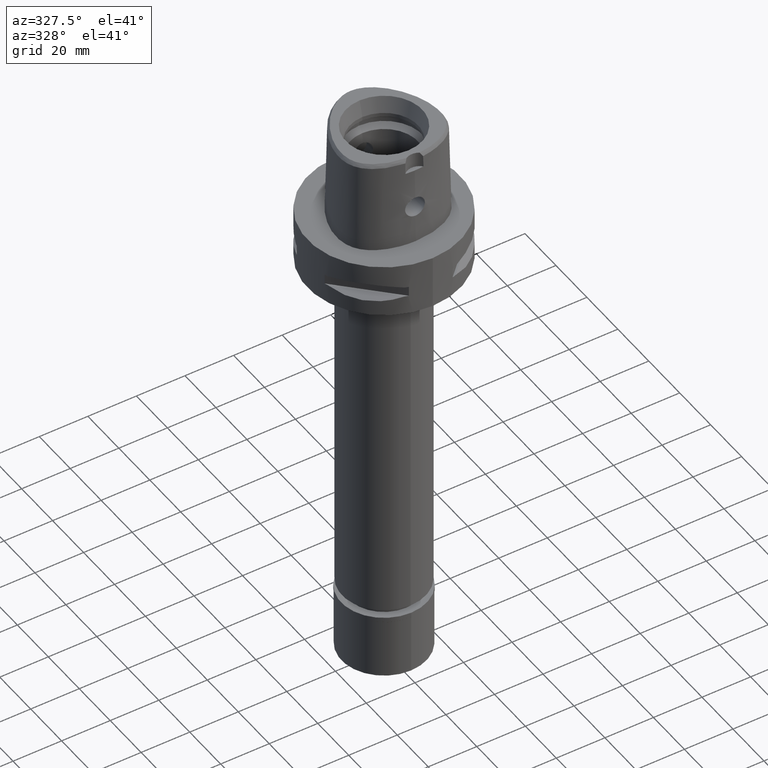
[diagram: clean part render]
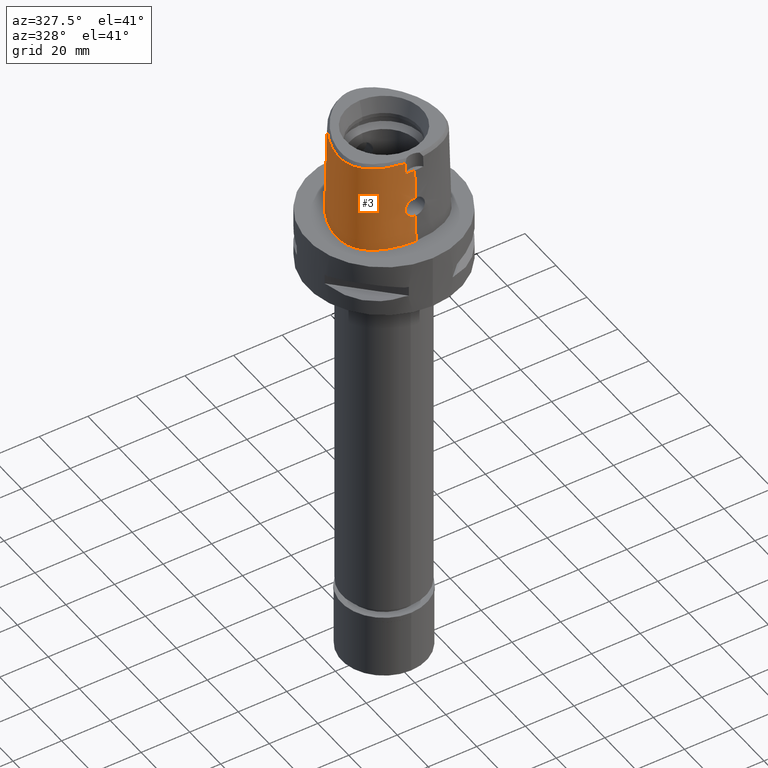
[diagram: same view with one face highlighted and labeled with its STEP entity id]
A machine part, auxiliary view. The second image highlights one B-rep face of the part: STEP entity #3.
In plain terms, the highlighted face is a freeform B-spline surface patch.
Its self-contained STEP definition (entity closure, byte-faithful):
#3 = ADVANCED_FACE ( 'NONE', ( #1398 ), #548, .T. ) ;
#8 = CARTESIAN_POINT ( 'NONE',  ( -3.623131309220052554, -20.05420346129743692, 17.31085075801793494 ) ) ;
#30 = CARTESIAN_POINT ( 'NONE',  ( -4.048201904855843303, -20.04950689277234233, 15.62483520886018340 ) ) ;
#52 = CARTESIAN_POINT ( 'NONE',  ( -1.853278680977999970, -20.08023904659999914, 24.59141015135000075 ) ) ;
#54 = CARTESIAN_POINT ( 'NONE',  ( -2.823171496021848803, -20.10104368072842718, 18.40390846381723122 ) ) ;
#58 = ORIENTED_EDGE ( 'NONE', *, *, #3249, .T. ) ;
#75 = CARTESIAN_POINT ( 'NONE',  ( -3.952973241254577275, -20.08624587561835639, 14.60894738504896928 ) ) ;
#79 = CARTESIAN_POINT ( 'NONE',  ( -21.68301092319000034, -0.3332744191908000309, 11.93048611302999973 ) ) ;
#99 = CARTESIAN_POINT ( 'NONE',  ( -3.215526995341257077, -20.20173576183446684, 13.03412874362212825 ) ) ;
#128 = CARTESIAN_POINT ( 'NONE',  ( -18.06826688526575353, 10.43171875000154714, 3.352082066782058334E-13 ) ) ;
#148 = CARTESIAN_POINT ( 'NONE',  ( -10.34823224896999960, 18.70095483757999943, 24.59141015135000075 ) ) ;
#158 = CARTESIAN_POINT ( 'NONE',  ( -4.460158730496000764E-12, -20.67499999999999716, 5.410486873340000012E-14 ) ) ;
#176 = CARTESIAN_POINT ( 'NONE',  ( -1.864355968684000519E-11, 22.56201468012000078, 36.52186680743999858 ) ) ;
#196 = CARTESIAN_POINT ( 'NONE',  ( -13.69241949641999945, 15.03666366796000098, 37.25233418967000176 ) ) ;
#222 = CARTESIAN_POINT ( 'NONE',  ( -3.671249264779256283, -19.60525188575869393, 34.94790829898666829 ) ) ;
#252 = CARTESIAN_POINT ( 'NONE',  ( -1.025656898087838442, -20.17465608164540924, 19.42036563188924347 ) ) ;
#273 = CARTESIAN_POINT ( 'NONE',  ( -18.90964971338446077, -12.28759719905109549, 36.52186244847998609 ) ) ;
#276 = CARTESIAN_POINT ( 'NONE',  ( 0.4560943670892999569, -20.69106769093999887, -0.7304379252875999873 ) ) ;
#303 = CARTESIAN_POINT ( 'NONE',  ( -1.517187227779240200, -20.16080388944384083, 19.25509261511315628 ) ) ;
#321 = CARTESIAN_POINT ( 'NONE',  ( -2.376843896514439169, 22.39422508474340745, 36.52186244847998609 ) ) ;
#338 = B_SPLINE_CURVE_WITH_KNOTS ( 'NONE', 3,
 ( #4441, #2248, #1015, #4886, #4420, #4517, #3665, #273, #3299, #1402, #2923, #1036, #2175, #3321, #4092, #4830, #685, #2606, #2200, #3714, #321, #3344, #4855 ),
 .UNSPECIFIED., .F., .F.,
 ( 4, 1, 1, 1, 1, 1, 1, 1, 1, 1, 1, 1, 1, 1, 1, 1, 1, 1, 1, 1, 4 ),
 ( 0.0000000000000000000, 0.03580973941722532389, 0.1234633994701856696, 0.1672902294966132908, 0.2111170595230409119, 0.2549438895495736435, 0.2768573045627875095, 0.2987707195760012646, 0.3206841345893202133, 0.3425975496024288858, 0.3864243796289617006, 0.4302512096553893217, 0.4740780396818169429, 0.5617316997347773233, 0.6493853597877378148, 0.7370390198406980842, 0.8246926798935533265, 0.8685195099200860858, 0.9123463399465031598, 0.9561731699729623113, 1.000000000000000000 ),
 .UNSPECIFIED. ) ;
#343 = CARTESIAN_POINT ( 'NONE',  ( -7.259695334136999634, 20.78233546986000135, 24.59141015135000075 ) ) ;
#345 = CARTESIAN_POINT ( 'NONE',  ( 2.041042029990999821E-08, -19.88004246002000031, 31.80000004972000127 ) ) ;
#348 = CARTESIAN_POINT ( 'NONE',  ( 0.4520368069095999641, -20.37458450601999971, 11.93048611302999973 ) ) ;
#378 = CARTESIAN_POINT ( 'NONE',  ( -14.68244497424000095, -17.23001773565000150, -0.7304379252875999873 ) ) ;
#379 = CARTESIAN_POINT ( 'NONE',  ( -3.704547339788379468, -20.04994126119368403, 17.13715336648374432 ) ) ;
#385 = CARTESIAN_POINT ( 'NONE',  ( 6.821926644003660622E-09, -19.98212988583490102, 27.71666688228199504 ) ) ;
#400 = CARTESIAN_POINT ( 'NONE',  ( -16.57726023041000118, -15.19304447977999928, 24.59141015135000075 ) ) ;
#401 = CARTESIAN_POINT ( 'NONE',  ( -3.925430104257766395, -20.04100510367236865, 16.53130951952303462 ) ) ;
#420 = CARTESIAN_POINT ( 'NONE',  ( -2.438150564111999596, 22.68791620488000049, 24.59141015135000075 ) ) ;
#424 = CARTESIAN_POINT ( 'NONE',  ( -16.97022731490999803, -15.69280483599000142, -0.7304379252875999873 ) ) ;
#426 = CARTESIAN_POINT ( 'NONE',  ( -2.004946554111011192, -20.14219031904399415, 19.01961090508990182 ) ) ;
#443 = CARTESIAN_POINT ( 'NONE',  ( -4.868968346465999630, 21.95285518831000360, 24.59141015135000075 ) ) ;
#451 = CARTESIAN_POINT ( 'NONE',  ( -3.749024933914989255, -20.12484193209298411, 13.96788032053401629 ) ) ;
#469 = CARTESIAN_POINT ( 'NONE',  ( -4.019667317129694162, -20.04319797611773524, 16.01149687264317123 ) ) ;
#532 = B_SPLINE_CURVE_WITH_KNOTS ( 'NONE', 3,
 ( #1481, #4887, #4020, #3647, #252, #3277, #4784, #2924, #4443, #303, #1798, #1065, #2203, #3393, #3798, #426, #815, #1558, #2712, #2689, #3450, #1917, #3057, #4175, #1118, #2658, #54, #1603, #3081, #3422, #769, #2252, #1192, #4594, #8, #2287, #2336, #379, #1141, #3102, #4222, #3844, #1871, #401, #1505, #469, #1894, #1946, #30, #1532, #2361, #734, #2310, #75, #4201, #1969, #3495, #1578, #4573, #3034, #451, #4616, #4543, #3473, #1216, #1171, #3822, #4519, #4244, #794, #2736, #844, #3866, #99, #2630, #4144, #3769, #2047, #3151, #4707, #2782, #1306, #962, #3173, #562, #4292, #2830, #2481, #4686, #2068, #1281, #1698, #3886, #4731, #3592, #1991 ),
 .UNSPECIFIED., .F., .F.,
 ( 4, 2, 2, 1, 1, 1, 2, 2, 2, 2, 1, 2, 2, 2, 1, 1, 1, 2, 2, 2, 2, 2, 1, 1, 2, 2, 2, 2, 1, 2, 2, 2, 2, 1, 1, 1, 2, 2, 2, 2, 1, 1, 2, 2, 2, 1, 1, 1, 2, 2, 2, 2, 2, 1, 1, 2, 2, 4 ),
 ( 0.0000000000000000000, 0.06250000000002507716, 0.09375000000003760880, 0.1093750000000438816, 0.1171875000000469069, 0.1210937500000484335, 0.1230468750000492384, 0.1250000000000500155, 0.1562500000000603961, 0.1718750000000657252, 0.1796875000000685840, 0.1835937500000699996, 0.1875000000000714151, 0.2187500000000836831, 0.2343750000000897893, 0.2421875000000927869, 0.2460937500000942579, 0.2480468750000952571, 0.2500000000000962563, 0.3125000000001353362, 0.3437500000001549316, 0.3593750000001647016, 0.3671875000001695311, 0.3710937500001715295, 0.3730468750001721401, 0.3750000000001728062, 0.4375000000001714739, 0.4687500000001704747, 0.4843750000001695866, 0.4921875000001687539, 0.5000000000001678657, 0.5625000000001595390, 0.5937500000001550982, 0.6093750000001528777, 0.6171875000001516565, 0.6210937500001509903, 0.6230468750001506573, 0.6250000000001503242, 0.6562500000001398881, 0.6718750000001346701, 0.6796875000001322276, 0.6835937500001311173, 0.6855468750001306732, 0.6875000000001302292, 0.7187500000001192380, 0.7343750000001135758, 0.7421875000001109113, 0.7460937500001095790, 0.7480468750001089129, 0.7500000000001082467, 0.8125000000000812683, 0.8437500000000679456, 0.8593750000000612843, 0.8671875000000578426, 0.8710937500000562883, 0.8730468750000554001, 0.8750000000000545120, 1.000000000000000000 ),
 .UNSPECIFIED. ) ;
#541 = CARTESIAN_POINT ( 'NONE',  ( -22.24453907854383772, -4.100468750000192841, 3.352082066782058334E-13 ) ) ;
#548 = B_SPLINE_SURFACE_WITH_KNOTS ( 'NONE', 3, 3, ( 
 ( #4115, #3341, #1725, #3251 ),
 ( #4754, #1350, #2876, #1033 ),
 ( #4059, #1420, #2578, #3415 ),
 ( #2685, #3443, #420, #1189 ),
 ( #2709, #3839, #443, #704 ),
 ( #1941, #1211, #343, #1256 ),
 ( #937, #2454, #148, #3955 ),
 ( #1235, #558, #2063, #196 ),
 ( #1598, #1278, #4289, #1694 ),
 ( #3126, #4239, #836, #2758 ),
 ( #4267, #79, #3373, #3803 ),
 ( #2314, #1485, #4525, #1562 ),
 ( #3085, #4598, #2635, #2258 ),
 ( #1509, #4180, #4622, #4466 ),
 ( #2607, #3005, #709, #3740 ),
 ( #768, #2285, #1116, #3392 ),
 ( #2629, #1453, #1504, #2977 ),
 ( #4142, #2201, #2251, #3032 ),
 ( #424, #4542, #400, #3767 ),
 ( #378, #3797, #793, #1893 ),
 ( #1063, #1870, #3421, #1530 ),
 ( #1170, #2688, #4200, #2309 ),
 ( #1915, #3448, #52, #1557 ),
 ( #276, #348, #3006, #4518 ),
 ( #1797, #4063, #635, #615 ) ),
 .UNSPECIFIED., .F., .F., .F.,
 ( 4, 1, 1, 1, 1, 1, 1, 1, 1, 1, 1, 1, 1, 1, 1, 1, 1, 1, 1, 1, 1, 1, 4 ),
 ( 4, 4 ),
 ( -0.01173777939039999905, 0.0000000000000000000, 0.04166666666717999679, 0.08333333333381000296, 0.1250000000004000134, 0.1666666666671000052, 0.2500000000002999823, 0.3333333333335999904, 0.4166666666668999985, 0.5000000000001999512, 0.5416666666667999674, 0.5833333333333999837, 0.6250000000001000311, 0.6458333333333000637, 0.6666666666667000474, 0.6875000000000000000, 0.7083333333333000637, 0.7500000000000000000, 0.7916666666666000163, 0.8333333333332000326, 0.9166666666664999852, 1.000000000000000000, 1.008985696609000060 ),
 ( -5.074938018434999637E-09, 1.000000258822000054 ),
 .UNSPECIFIED. ) ;
#558 = CARTESIAN_POINT ( 'NONE',  ( -14.17879751530000121, 15.44741189366000000, 11.93048611302999973 ) ) ;
#562 = CARTESIAN_POINT ( 'NONE',  ( -1.975847471373592290, -20.32064467132726193, 11.96254614165365204 ) ) ;
#615 = CARTESIAN_POINT ( 'NONE',  ( 0.6657744261846999523, -19.73734226120999935, 37.25233418967000176 ) ) ;
#632 = CARTESIAN_POINT ( 'NONE',  ( -4.460158730496000764E-12, -20.67499999999999716, 5.410486873340000012E-14 ) ) ;
#635 = CARTESIAN_POINT ( 'NONE',  ( 0.6718639792813000389, -20.05378869280999865, 24.59141015135000075 ) ) ;
#683 = CARTESIAN_POINT ( 'NONE',  ( -16.95889172593403060, -15.67838867186882901, 3.352082066782058334E-13 ) ) ;
#685 = CARTESIAN_POINT ( 'NONE',  ( -13.70645028111045782, 15.04851272300170528, 36.52186244847998609 ) ) ;
#686 = CARTESIAN_POINT ( 'NONE',  ( -5.581659992689000171E-13, -20.38876923348000147, 11.44999999999999929 ) ) ;
#704 = CARTESIAN_POINT ( 'NONE',  ( -4.750826060501000647, 21.65775765840999867, 37.25233418967000176 ) ) ;
#709 = CARTESIAN_POINT ( 'NONE',  ( -20.36913753584000020, -10.35391834291000102, 24.59141015135000075 ) ) ;
#728 = ORIENTED_EDGE ( 'NONE', *, *, #4387, .F. ) ;
#734 = CARTESIAN_POINT ( 'NONE',  ( -4.049829286978746445, -20.05866643351855316, 15.25290641861667318 ) ) ;
#757 = VECTOR ( 'NONE', #4357, 1000.000000000000114 ) ;
#768 = CARTESIAN_POINT ( 'NONE',  ( -20.36546125046000100, -11.75800453515000044, -0.7304379252875999873 ) ) ;
#769 = CARTESIAN_POINT ( 'NONE',  ( -3.081106146083308239, -20.08580853919509934, 18.14635433979623258 ) ) ;
#793 = CARTESIAN_POINT ( 'NONE',  ( -14.36818019929999934, -16.67825706645999873, 24.59141015135000075 ) ) ;
#794 = CARTESIAN_POINT ( 'NONE',  ( -3.389265356477735303, -20.17902220973997274, 13.28291429009942171 ) ) ;
#815 = CARTESIAN_POINT ( 'NONE',  ( -2.095920934921585932, -20.13817625620769292, 18.96566852664457059 ) ) ;
#836 = CARTESIAN_POINT ( 'NONE',  ( -20.16779715499999881, 4.447573578337000733, 24.59141015135000075 ) ) ;
#844 = CARTESIAN_POINT ( 'NONE',  ( -3.373031804187260008, -20.18121639258753675, 13.25829856262887674 ) ) ;
#922 = VERTEX_POINT ( 'NONE', #1163 ) ;
#937 = CARTESIAN_POINT ( 'NONE',  ( -10.75753574212999908, 19.18839676225000090, -0.7304379252875999873 ) ) ;
#962 = CARTESIAN_POINT ( 'NONE',  ( -2.421272737357792693, -20.28648162103944941, 12.24262651722072093 ) ) ;
#1015 = CARTESIAN_POINT ( 'NONE',  ( -7.300578999875409814, -19.07170748892022161, 36.52186244847998609 ) ) ;
#1033 = CARTESIAN_POINT ( 'NONE',  ( 0.4441906901681000330, 22.53710749174999961, 37.25233418967000176 ) ) ;
#1036 = CARTESIAN_POINT ( 'NONE',  ( -21.14970188363863812, -6.717195958887974605, 36.52186244847998609 ) ) ;
#1059 = CARTESIAN_POINT ( 'NONE',  ( -20.34961798557038293, -11.74885742186653559, 3.352082066782058334E-13 ) ) ;
#1063 = CARTESIAN_POINT ( 'NONE',  ( -11.23887130463999995, -18.91049776594999798, -0.7304379252875999873 ) ) ;
#1065 = CARTESIAN_POINT ( 'NONE',  ( -1.543155906918510567, -20.15993380737172913, 19.24449221917354436 ) ) ;
#1107 = VERTEX_POINT ( 'NONE', #2552 ) ;
#1116 = CARTESIAN_POINT ( 'NONE',  ( -19.81622806761999911, -11.44090460798999942, 24.59141015135000075 ) ) ;
#1118 = CARTESIAN_POINT ( 'NONE',  ( -2.696297221292836888, -20.10826766487160455, 18.52327467490286494 ) ) ;
#1127 = CARTESIAN_POINT ( 'NONE',  ( 2.041042029990999821E-08, -19.88004246002000031, 31.80000004972000127 ) ) ;
#1141 = CARTESIAN_POINT ( 'NONE',  ( -3.724367697019177914, -20.04896662180717115, 17.09120659050646296 ) ) ;
#1153 = CARTESIAN_POINT ( 'NONE',  ( 0.0000000000000000000, -20.18628283968999781, 19.55000000000000071 ) ) ;
#1163 = CARTESIAN_POINT ( 'NONE',  ( 3.368715197014000071E-11, 23.47499999999000053, 5.114427400106999591E-14 ) ) ;
#1170 = CARTESIAN_POINT ( 'NONE',  ( -6.344715577788000438, -20.31619965575000109, -0.7304379252875999873 ) ) ;
#1171 = CARTESIAN_POINT ( 'NONE',  ( -3.522029659420108594, -20.16043548747411762, 13.49928467487248973 ) ) ;
#1189 = CARTESIAN_POINT ( 'NONE',  ( -2.373090242647999837, 22.37624311234999652, 37.25233418967000176 ) ) ;
#1192 = CARTESIAN_POINT ( 'NONE',  ( -3.474608496684532533, -20.06254674854093523, 17.58500429057363945 ) ) ;
#1211 = CARTESIAN_POINT ( 'NONE',  ( -7.420053088702999844, 21.05635736904000055, 11.93048611302999973 ) ) ;
#1216 = CARTESIAN_POINT ( 'NONE',  ( -3.555378551724422742, -20.15552821991712307, 13.55933742265570174 ) ) ;
#1235 = CARTESIAN_POINT ( 'NONE',  ( -14.42198652473999942, 15.65278600650999863, -0.7304379252875999873 ) ) ;
#1256 = CARTESIAN_POINT ( 'NONE',  ( -7.099337579571000312, 20.50831357067999861, 37.25233418967000176 ) ) ;
#1261 = CARTESIAN_POINT ( 'NONE',  ( -21.97832647786615823, -0.2810937500000170730, 3.352082066782058334E-13 ) ) ;
#1278 = CARTESIAN_POINT ( 'NONE',  ( -17.80867299878000054, 10.28184203810000064, 11.93048611302999973 ) ) ;
#1281 = CARTESIAN_POINT ( 'NONE',  ( -1.573175409423598792, -20.34568097891649074, 11.76802073981899888 ) ) ;
#1283 = CARTESIAN_POINT ( 'NONE',  ( -14.40795638957999358, 15.64093749999941707, 3.352082066782058334E-13 ) ) ;
#1302 = B_SPLINE_CURVE_WITH_KNOTS ( 'NONE', 3,
 ( #345, #1819, #3055, #3343 ),
 .UNSPECIFIED., .F., .F.,
 ( 4, 4 ),
 ( 0.0000000000000000000, 1.000000000000000000 ),
 .UNSPECIFIED. ) ;
#1306 = CARTESIAN_POINT ( 'NONE',  ( -2.647522161645349037, -20.26593589461896627, 12.41993733201061190 ) ) ;
#1350 = CARTESIAN_POINT ( 'NONE',  ( 0.4696382007062999686, 23.16972795609999736, 11.93048611302999973 ) ) ;
#1398 = FACE_OUTER_BOUND ( 'NONE', #2543, .T. ) ;
#1402 = CARTESIAN_POINT ( 'NONE',  ( -20.09619618740728697, -10.23243843868284664, 36.52186244847998609 ) ) ;
#1405 = EDGE_CURVE ( 'NONE', #1561, #3728, #1302, .T. ) ;
#1420 = CARTESIAN_POINT ( 'NONE',  ( -0.5985508133482999593, 23.20171267769999801, 11.93048611302999973 ) ) ;
#1428 = VERTEX_POINT ( 'NONE', #4854 ) ;
#1449 = CARTESIAN_POINT ( 'NONE',  ( -19.64947365863480755, -12.82525390624923745, 3.352082066782058334E-13 ) ) ;
#1453 = CARTESIAN_POINT ( 'NONE',  ( -19.40779761275000226, -12.64961921927000077, 11.93048611302999973 ) ) ;
#1481 = CARTESIAN_POINT ( 'NONE',  ( 0.0000000000000000000, -20.18628283968999781, 19.55000000000000071 ) ) ;
#1485 = CARTESIAN_POINT ( 'NONE',  ( -21.94536969293999817, -4.102220499790999675, 11.93048611302999973 ) ) ;
#1504 = CARTESIAN_POINT ( 'NONE',  ( -19.15132507425999719, -12.46323138820000054, 24.59141015135000075 ) ) ;
#1505 = CARTESIAN_POINT ( 'NONE',  ( -4.001073718364239973, -20.04211669945547314, 16.14143145178027794 ) ) ;
#1509 = CARTESIAN_POINT ( 'NONE',  ( -21.57281239853999821, -9.001246196942998878, -0.7304379252875999873 ) ) ;
#1530 = CARTESIAN_POINT ( 'NONE',  ( -10.91263696184000054, -18.01320768659999771, 37.25233418967000176 ) ) ;
#1532 = CARTESIAN_POINT ( 'NONE',  ( -4.049668354669065273, -20.05093596202167561, 15.56089917110747933 ) ) ;
#1557 = CARTESIAN_POINT ( 'NONE',  ( -1.836486875187999912, -19.76356426727000226, 37.25233418967000176 ) ) ;
#1558 = CARTESIAN_POINT ( 'NONE',  ( -2.141741549223354468, -20.13611517949176033, 18.93769700922614163 ) ) ;
#1561 = VERTEX_POINT ( 'NONE', #4685 ) ;
#1562 = CARTESIAN_POINT ( 'NONE',  ( -21.31039793572999841, -4.105938499345999304, 37.25233418967000176 ) ) ;
#1578 = CARTESIAN_POINT ( 'NONE',  ( -3.788123932984424957, -20.11813248785025365, 14.06654490361852261 ) ) ;
#1598 = CARTESIAN_POINT ( 'NONE',  ( -18.08416038852000085, 10.44089487521999970, -0.7304379252875999873 ) ) ;
#1603 = CARTESIAN_POINT ( 'NONE',  ( -2.840925263430273962, -20.10000581476814574, 18.38647058799722700 ) ) ;
#1692 = CARTESIAN_POINT ( 'NONE',  ( -3.704239554508806709, -19.64128071341180259, 33.37395414949332917 ) ) ;
#1694 = CARTESIAN_POINT ( 'NONE',  ( -17.25769821927999814, 9.963736363867999657, 37.25233418967000176 ) ) ;
#1698 = CARTESIAN_POINT ( 'NONE',  ( -1.560125442580926780, -20.34639974841499566, 11.76254649919923345 ) ) ;
#1725 = CARTESIAN_POINT ( 'NONE',  ( 0.6850313979548000587, 22.83959027903000205, 24.59141015135000075 ) ) ;
#1797 = CARTESIAN_POINT ( 'NONE',  ( 0.6840430854747000522, -20.68668155601000080, -0.7304379252875999873 ) ) ;
#1798 = CARTESIAN_POINT ( 'NONE',  ( -1.533511455574234406, -20.16025888516049491, 19.24845571506939379 ) ) ;
#1801 = ORIENTED_EDGE ( 'NONE', *, *, #4150, .T. ) ;
#1819 = CARTESIAN_POINT ( 'NONE',  ( -1.251533623286057662, -19.88005341379352231, 31.80000012767959916 ) ) ;
#1832 = CARTESIAN_POINT ( 'NONE',  ( -3.736723542700000067, -19.67781740937999757, 31.80000000000000071 ) ) ;
#1843 = CARTESIAN_POINT ( 'NONE',  ( -6.341471019216439409, -20.29812500000378961, 3.352082066782058334E-13 ) ) ;
#1870 = CARTESIAN_POINT ( 'NONE',  ( -11.13012652370000133, -18.61140107283999612, 11.93048611302999973 ) ) ;
#1871 = CARTESIAN_POINT ( 'NONE',  ( -3.848435446465739318, -20.04310701875522227, 16.79138261316987624 ) ) ;
#1877 = CARTESIAN_POINT ( 'NONE',  ( 6.841904529351796287E-09, -20.08420636276294147, 23.63333344114117196 ) ) ;
#1893 = CARTESIAN_POINT ( 'NONE',  ( -14.21104781182999943, -16.40237673187000311, 37.25233418967000176 ) ) ;
#1894 = CARTESIAN_POINT ( 'NONE',  ( -4.038047189180184127, -20.04588600821298527, 15.81762949443514188 ) ) ;
#1915 = CARTESIAN_POINT ( 'NONE',  ( -1.886862292556999998, -20.71358860526000001, -0.7304379252875999873 ) ) ;
#1917 = CARTESIAN_POINT ( 'NONE',  ( -2.360303563075751843, -20.12579123674484549, 18.79379445004653348 ) ) ;
#1920 = B_SPLINE_CURVE_WITH_KNOTS ( 'NONE', 3,
 ( #1127, #385, #1877, #1153 ),
 .UNSPECIFIED., .F., .F.,
 ( 4, 4 ),
 ( 0.0000000000000000000, 1.000000000000000000 ),
 .UNSPECIFIED. ) ;
#1941 = CARTESIAN_POINT ( 'NONE',  ( -7.580410843267999965, 21.33037926822000330, -0.7304379252875999873 ) ) ;
#1946 = CARTESIAN_POINT ( 'NONE',  ( -4.044860985360217320, -20.04749655353606386, 15.72095293212210443 ) ) ;
#1969 = CARTESIAN_POINT ( 'NONE',  ( -3.862670319763411353, -20.10459525844651196, 14.28058037401624425 ) ) ;
#1991 = CARTESIAN_POINT ( 'NONE',  ( -5.581659992689000171E-13, -20.38876923348000147, 11.44999999999999929 ) ) ;
#2015 = CARTESIAN_POINT ( 'NONE',  ( -5.581659992689000171E-13, -20.38876923348000147, 11.44999999999999929 ) ) ;
#2047 = CARTESIAN_POINT ( 'NONE',  ( -2.904740653634405589, -20.23783060520588606, 12.67768464775361714 ) ) ;
#2063 = CARTESIAN_POINT ( 'NONE',  ( -13.93560850585999944, 15.24203778080999960, 24.59141015135000075 ) ) ;
#2068 = CARTESIAN_POINT ( 'NONE',  ( -1.592783463530420551, -20.34459380331124834, 11.77630631410374562 ) ) ;
#2175 = CARTESIAN_POINT ( 'NONE',  ( -21.32871527669574618, -4.105831244393684187, 36.52186244847998609 ) ) ;
#2200 = CARTESIAN_POINT ( 'NONE',  ( -7.108589416785773274, 20.52412325828356288, 36.52186244847998609 ) ) ;
#2201 = CARTESIAN_POINT ( 'NONE',  ( -18.35112147562000118, -13.96357029624999946, 11.93048611302999973 ) ) ;
#2203 = CARTESIAN_POINT ( 'NONE',  ( -1.656557867873093448, -20.15608475847808734, 19.19752105505947526 ) ) ;
#2225 = B_SPLINE_CURVE_WITH_KNOTS ( 'NONE', 3,
 ( #3166, #222, #1692, #2778 ),
 .UNSPECIFIED., .F., .F.,
 ( 4, 4 ),
 ( 0.0000000000000000000, 1.000000000000000000 ),
 .UNSPECIFIED. ) ;
#2248 = CARTESIAN_POINT ( 'NONE',  ( -4.467522189395490173, -19.48130287050568654, 36.52186244847998609 ) ) ;
#2251 = CARTESIAN_POINT ( 'NONE',  ( -18.12052888088999936, -13.74516012276000154, 24.59141015135000075 ) ) ;
#2252 = CARTESIAN_POINT ( 'NONE',  ( -3.258458186245307253, -20.07518877970000304, 17.91982202574122596 ) ) ;
#2258 = CARTESIAN_POINT ( 'NONE',  ( -21.13154848926000184, -6.714587020499000580, 37.25233418967000176 ) ) ;
#2285 = CARTESIAN_POINT ( 'NONE',  ( -20.09084465903999828, -11.59945457156999993, 11.93048611302999973 ) ) ;
#2287 = CARTESIAN_POINT ( 'NONE',  ( -3.649552918763930620, -20.05278137445501585, 17.25690594502236763 ) ) ;
#2309 = CARTESIAN_POINT ( 'NONE',  ( -6.175998531813999826, -19.37631755701000102, 37.25233418967000176 ) ) ;
#2310 = CARTESIAN_POINT ( 'NONE',  ( -4.027507123326816263, -20.06787434564716932, 14.99842726719356456 ) ) ;
#2314 = CARTESIAN_POINT ( 'NONE',  ( -22.26285557154000116, -4.100361500013000260, -0.7304379252875999873 ) ) ;
#2336 = CARTESIAN_POINT ( 'NONE',  ( -3.686640039273354930, -20.05085371969659036, 17.17691650729988950 ) ) ;
#2361 = CARTESIAN_POINT ( 'NONE',  ( -4.050020239240829767, -20.05172727870752780, 15.52772083009922532 ) ) ;
#2378 = ORIENTED_EDGE ( 'NONE', *, *, #2910, .F. ) ;
#2428 = LINE ( 'NONE', #2015, #757 ) ;
#2454 = CARTESIAN_POINT ( 'NONE',  ( -10.55288399554999934, 18.94467579991000150, 11.93048611302999973 ) ) ;
#2481 = CARTESIAN_POINT ( 'NONE',  ( -1.678547993833604091, -20.33965717508455029, 11.81410234512286550 ) ) ;
#2543 = EDGE_LOOP ( 'NONE', ( #4860, #2378, #4842, #4124, #728, #1801, #58, #3266 ) ) ;
#2552 = CARTESIAN_POINT ( 'NONE',  ( 0.0000000000000000000, -20.18628283968999781, 19.55000000000000071 ) ) ;
#2578 = CARTESIAN_POINT ( 'NONE',  ( -0.5821289136745000370, 22.88453069997000355, 24.59141015135000075 ) ) ;
#2606 = CARTESIAN_POINT ( 'NONE',  ( -10.15538788053466668, 18.47129535094161312, 36.52186244847998609 ) ) ;
#2607 = CARTESIAN_POINT ( 'NONE',  ( -20.94844326428000159, -10.61175397248999985, -0.7304379252875999873 ) ) ;
#2629 = CARTESIAN_POINT ( 'NONE',  ( -19.66427015124000022, -12.83600705035000011, -0.7304379252875999873 ) ) ;
#2630 = CARTESIAN_POINT ( 'NONE',  ( -3.089195988020668526, -20.21685458561811188, 12.88011891962693234 ) ) ;
#2635 = CARTESIAN_POINT ( 'NONE',  ( -21.44619275858000051, -6.759806525786999920, 24.59141015135000075 ) ) ;
#2658 = CARTESIAN_POINT ( 'NONE',  ( -2.781372202972141938, -20.10345949974353985, 18.44421388672359541 ) ) ;
#2685 = CARTESIAN_POINT ( 'NONE',  ( -2.568271207041999737, 23.31126238995999955, -0.7304379252875999873 ) ) ;
#2688 = CARTESIAN_POINT ( 'NONE',  ( -6.288476562463999997, -20.00290562284000018, 11.93048611302999973 ) ) ;
#2689 = CARTESIAN_POINT ( 'NONE',  ( -2.218905924399034557, -20.13252692328817517, 18.88811097025616093 ) ) ;
#2692 = VERTEX_POINT ( 'NONE', #158 ) ;
#2709 = CARTESIAN_POINT ( 'NONE',  ( -5.105252918397000350, 22.54305024812000369, -0.7304379252875999873 ) ) ;
#2712 = CARTESIAN_POINT ( 'NONE',  ( -2.187988573834744876, -20.13397303482916811, 18.90815865958026265 ) ) ;
#2736 = CARTESIAN_POINT ( 'NONE',  ( -3.378917219879157940, -20.18042296661780455, 13.26717508011272528 ) ) ;
#2758 = CARTESIAN_POINT ( 'NONE',  ( -19.86834395502999939, 4.339653539460999632, 37.25233418967000176 ) ) ;
#2772 = VERTEX_POINT ( 'NONE', #3716 ) ;
#2778 = CARTESIAN_POINT ( 'NONE',  ( -3.736723542700000067, -19.67781740937999757, 31.80000000000000071 ) ) ;
#2782 = CARTESIAN_POINT ( 'NONE',  ( -2.870676439667398494, -20.24157259641098605, 12.64311214024317209 ) ) ;
#2805 = CARTESIAN_POINT ( 'NONE',  ( -20.74942740879731318, 4.657187499999997371, 3.352082066782058334E-13 ) ) ;
#2817 = VECTOR ( 'NONE', #4294, 1000.000000000000114 ) ;
#2830 = CARTESIAN_POINT ( 'NONE',  ( -1.758573507193426311, -20.33483936207402110, 11.85124969624890312 ) ) ;
#2852 = CARTESIAN_POINT ( 'NONE',  ( -22.05732874322076498, -6.847636718749286366, 3.352082066782058334E-13 ) ) ;
#2869 = VERTEX_POINT ( 'NONE', #686 ) ;
#2876 = CARTESIAN_POINT ( 'NONE',  ( 0.4569144454372000563, 22.85341772391999982, 24.59141015135000075 ) ) ;
#2910 = EDGE_CURVE ( 'NONE', #1107, #2869, #532, .T. ) ;
#2923 = CARTESIAN_POINT ( 'NONE',  ( -20.67704215116002686, -8.734985316449719761, 36.52186244847998609 ) ) ;
#2924 = CARTESIAN_POINT ( 'NONE',  ( -1.435479731735231246, -20.16346186668282314, 19.28735383016424265 ) ) ;
#2977 = CARTESIAN_POINT ( 'NONE',  ( -18.89485253576999924, -12.27684355712999853, 37.25233418967000176 ) ) ;
#3005 = CARTESIAN_POINT ( 'NONE',  ( -20.65879040006000267, -10.48283615770000132, 11.93048611302999973 ) ) ;
#3006 = CARTESIAN_POINT ( 'NONE',  ( 0.4479792467299999470, -20.05810132110000055, 24.59141015135000075 ) ) ;
#3032 = CARTESIAN_POINT ( 'NONE',  ( -17.88993628615000020, -13.52674994927000007, 37.25233418967000176 ) ) ;
#3034 = CARTESIAN_POINT ( 'NONE',  ( -3.755699594869518876, -20.12370835398187552, 13.98431559339678287 ) ) ;
#3055 = CARTESIAN_POINT ( 'NONE',  ( -2.503154897714177540, -19.81241975539991529, 31.80000012767959916 ) ) ;
#3057 = CARTESIAN_POINT ( 'NONE',  ( -2.467031803648025434, -20.12045714792764883, 18.71463355124487649 ) ) ;
#3081 = CARTESIAN_POINT ( 'NONE',  ( -2.852725281556681480, -20.09931334524933177, 18.37480908509361655 ) ) ;
#3085 = CARTESIAN_POINT ( 'NONE',  ( -22.07548129721999786, -6.850245536362000287, -0.7304379252875999873 ) ) ;
#3102 = CARTESIAN_POINT ( 'NONE',  ( -3.732637044261017056, -20.04856818254156536, 17.07161403142751865 ) ) ;
#3126 = CARTESIAN_POINT ( 'NONE',  ( -20.76670355494999853, 4.663413656089000270, -0.7304379252875999873 ) ) ;
#3151 = CARTESIAN_POINT ( 'NONE',  ( -2.887298006306362907, -20.23974971339213269, 12.65991565105024108 ) ) ;
#3153 = LINE ( 'NONE', #176, #2817 ) ;
#3166 = CARTESIAN_POINT ( 'NONE',  ( -3.637738201363999835, -19.56971413236999879, 36.52186244848000030 ) ) ;
#3173 = CARTESIAN_POINT ( 'NONE',  ( -2.086662004803275572, -20.31268127563473769, 12.02638839297528861 ) ) ;
#3174 = CARTESIAN_POINT ( 'NONE',  ( 3.368715197014000071E-11, 23.47499999999000053, 5.114427400106999591E-14 ) ) ;
#3229 = CARTESIAN_POINT ( 'NONE',  ( -0.8548392423002898477, 23.47500000000390941, 3.352082066782058839E-13 ) ) ;
#3249 = EDGE_CURVE ( 'NONE', #1428, #922, #3153, .T. ) ;
#3251 = CARTESIAN_POINT ( 'NONE',  ( 0.6658292741963000028, 22.52368245213000364, 37.25233418967000176 ) ) ;
#3266 = ORIENTED_EDGE ( 'NONE', *, *, #3401, .T. ) ;
#3273 = CARTESIAN_POINT ( 'NONE',  ( -18.56841065142326741, -14.16937988281731187, 3.352082066782058334E-13 ) ) ;
#3277 = CARTESIAN_POINT ( 'NONE',  ( -1.222436418493096921, -20.16967318534058151, 19.36171385434177239 ) ) ;
#3299 = CARTESIAN_POINT ( 'NONE',  ( -19.55745547455961031, -11.29150218116255822, 36.52186244847998609 ) ) ;
#3321 = CARTESIAN_POINT ( 'NONE',  ( -21.07430010672952392, -0.4408303445193163528, 36.52186244847998609 ) ) ;
#3341 = CARTESIAN_POINT ( 'NONE',  ( 0.7042335217134001457, 23.15549810592000313, 11.93048611302999973 ) ) ;
#3343 = CARTESIAN_POINT ( 'NONE',  ( -3.736723542700000067, -19.67781740937999757, 31.80000000000000071 ) ) ;
#3344 = CARTESIAN_POINT ( 'NONE',  ( -0.7901461696971270321, 22.56201478746478628, 36.52186244847997898 ) ) ;
#3373 = CARTESIAN_POINT ( 'NONE',  ( -21.36961482435999926, -0.3886498232299999689, 24.59141015135000075 ) ) ;
#3392 = CARTESIAN_POINT ( 'NONE',  ( -19.54161147619999994, -11.28235464441000069, 37.25233418967000176 ) ) ;
#3393 = CARTESIAN_POINT ( 'NONE',  ( -1.769290236090162560, -20.15188564104894198, 19.14550049824245548 ) ) ;
#3401 = EDGE_CURVE ( 'NONE', #922, #2692, #4491, .T. ) ;
#3415 = CARTESIAN_POINT ( 'NONE',  ( -0.5657070140006998926, 22.56734872222999755, 37.25233418967000176 ) ) ;
#3421 = CARTESIAN_POINT ( 'NONE',  ( -11.02138174277000005, -18.31230437972000047, 24.59141015135000075 ) ) ;
#3422 = CARTESIAN_POINT ( 'NONE',  ( -2.857701613780251115, -20.09902039673188412, 18.36986640665419657 ) ) ;
#3443 = CARTESIAN_POINT ( 'NONE',  ( -2.503210885576999889, 22.99958929741999825, 11.93048611302999973 ) ) ;
#3448 = CARTESIAN_POINT ( 'NONE',  ( -1.870070486766999940, -20.39691382592999958, 11.93048611302999973 ) ) ;
#3450 = CARTESIAN_POINT ( 'NONE',  ( -2.236153415287450041, -20.13171160814247784, 18.87674297724549888 ) ) ;
#3473 = CARTESIAN_POINT ( 'NONE',  ( -3.647723961104308188, -20.14156542810543371, 13.73530131630009699 ) ) ;
#3495 = CARTESIAN_POINT ( 'NONE',  ( -3.830582834634971512, -20.11061303524500943, 14.18178188203387258 ) ) ;
#3592 = CARTESIAN_POINT ( 'NONE',  ( -0.5052764329501110430, -20.38876923347999792, 11.44999999999999929 ) ) ;
#3647 = CARTESIAN_POINT ( 'NONE',  ( -0.8945856573212739304, -20.17742435737030604, 19.45218689966873171 ) ) ;
#3665 = CARTESIAN_POINT ( 'NONE',  ( -17.90324032096414797, -13.53935111955109249, 36.52186244847998609 ) ) ;
#3712 = CARTESIAN_POINT ( 'NONE',  ( -11.23259756727808778, -18.89324218750133255, 3.352082066782058334E-13 ) ) ;
#3714 = CARTESIAN_POINT ( 'NONE',  ( -4.757642277159107813, 21.67478330407651299, 36.52186244847998609 ) ) ;
#3716 = CARTESIAN_POINT ( 'NONE',  ( -3.637738201363999835, -19.56971413236999879, 36.52186244848000030 ) ) ;
#3728 = VERTEX_POINT ( 'NONE', #1832 ) ;
#3740 = CARTESIAN_POINT ( 'NONE',  ( -20.07948467161000039, -10.22500052811999893, 37.25233418967000176 ) ) ;
#3767 = CARTESIAN_POINT ( 'NONE',  ( -16.38077668816000099, -14.94316430167000043, 37.25233418967000176 ) ) ;
#3769 = CARTESIAN_POINT ( 'NONE',  ( -2.945056662729405694, -20.23335974770785128, 12.71951979027732804 ) ) ;
#3783 = EDGE_CURVE ( 'NONE', #1561, #1107, #1920, .T. ) ;
#3797 = CARTESIAN_POINT ( 'NONE',  ( -14.52531258676999926, -16.95413740105999878, 11.93048611302999973 ) ) ;
#3798 = CARTESIAN_POINT ( 'NONE',  ( -1.945188340985209541, -20.14472224014079060, 19.05290483599655360 ) ) ;
#3803 = CARTESIAN_POINT ( 'NONE',  ( -21.05621872552000085, -0.4440252272692000179, 37.25233418967000176 ) ) ;
#3822 = CARTESIAN_POINT ( 'NONE',  ( -3.467735300022844136, -20.16817589423921930, 13.40749538292403997 ) ) ;
#3839 = CARTESIAN_POINT ( 'NONE',  ( -4.987110632431000390, 22.24795271821999876, 11.93048611302999973 ) ) ;
#3844 = CARTESIAN_POINT ( 'NONE',  ( -3.740210223303148673, -20.04820644071449820, 17.05351258040932549 ) ) ;
#3866 = CARTESIAN_POINT ( 'NONE',  ( -3.294693599458498490, -20.19174263028449801, 13.14094743667227760 ) ) ;
#3886 = CARTESIAN_POINT ( 'NONE',  ( -1.555094416681323866, -20.34667554096305508, 11.76044708272181616 ) ) ;
#3955 = CARTESIAN_POINT ( 'NONE',  ( -10.14358050240000075, 18.45723387524000003, 37.25233418967000176 ) ) ;
#4020 = CARTESIAN_POINT ( 'NONE',  ( -0.5041357073049608228, -20.18406821911007398, 19.52723308754438136 ) ) ;
#4059 = CARTESIAN_POINT ( 'NONE',  ( -0.6149727130220999927, 23.51889465544000046, -0.7304379252875999873 ) ) ;
#4063 = CARTESIAN_POINT ( 'NONE',  ( 0.6779535323780000455, -20.37023512441000150, 11.93048611302999973 ) ) ;
#4092 = CARTESIAN_POINT ( 'NONE',  ( -19.88562090098788815, 4.345879983792269918, 36.52186244847998609 ) ) ;
#4115 = CARTESIAN_POINT ( 'NONE',  ( 0.7234356454718999796, 23.47140593281999799, -0.7304379252875999873 ) ) ;
#4124 = ORIENTED_EDGE ( 'NONE', *, *, #1405, .T. ) ;
#4142 = CARTESIAN_POINT ( 'NONE',  ( -18.58171407035000300, -14.18198046975000004, -0.7304379252875999873 ) ) ;
#4144 = CARTESIAN_POINT ( 'NONE',  ( -3.024136408352382510, -20.22444627912459580, 12.80466769080713263 ) ) ;
#4150 = EDGE_CURVE ( 'NONE', #2772, #1428, #338, .T. ) ;
#4175 = CARTESIAN_POINT ( 'NONE',  ( -2.620910454321376815, -20.11234871000621993, 18.58832188861182644 ) ) ;
#4180 = CARTESIAN_POINT ( 'NONE',  ( -21.26836733221999864, -8.910752220773000332, 11.93048611302999973 ) ) ;
#4200 = CARTESIAN_POINT ( 'NONE',  ( -6.232237547139000355, -19.68961158991999838, 24.59141015135000075 ) ) ;
#4201 = CARTESIAN_POINT ( 'NONE',  ( -3.921294970892715614, -20.09312966257179767, 14.47785977238265431 ) ) ;
#4222 = CARTESIAN_POINT ( 'NONE',  ( -3.738100423595469568, -20.04830683710418171, 17.05857473067057839 ) ) ;
#4239 = CARTESIAN_POINT ( 'NONE',  ( -20.46725035497000178, 4.555493617213000057, 11.93048611302999973 ) ) ;
#4244 = CARTESIAN_POINT ( 'NONE',  ( -3.404642689838069280, -20.17693293396791532, 13.30648216238983927 ) ) ;
#4267 = CARTESIAN_POINT ( 'NONE',  ( -21.99640702202999876, -0.2778990151515999818, -0.7304379252875999873 ) ) ;
#4289 = CARTESIAN_POINT ( 'NONE',  ( -17.53318560902999934, 10.12278920098999890, 24.59141015135000075 ) ) ;
#4292 = CARTESIAN_POINT ( 'NONE',  ( -1.812531856163847266, -20.33143503110718342, 11.87770907740599391 ) ) ;
#4294 = DIRECTION ( 'NONE',  ( 1.432412216017964427E-12, 0.02499051290971940689, -0.9996876883629751687 ) ) ;
#4319 = CARTESIAN_POINT ( 'NONE',  ( -20.93173252211345314, -10.60431640625211180, 3.352082066782058334E-13 ) ) ;
#4357 = DIRECTION ( 'NONE',  ( -3.406789601297899633E-13, -0.02499051295389925070, -0.9996876883618708298 ) ) ;
#4363 = CARTESIAN_POINT ( 'NONE',  ( -21.55524826009845185, -8.996025390625495888, 3.352082066782058334E-13 ) ) ;
#4387 = EDGE_CURVE ( 'NONE', #2772, #3728, #2225, .T. ) ;
#4389 = CARTESIAN_POINT ( 'NONE',  ( -5.098437017283574235, 22.52602539062575460, 3.352082066782058334E-13 ) ) ;
#4420 = CARTESIAN_POINT ( 'NONE',  ( -14.22011356155925732, -16.41829364186474649, 36.52186244847998609 ) ) ;
#4441 = CARTESIAN_POINT ( 'NONE',  ( -3.637738201363999835, -19.56971413236999879, 36.52186244848000030 ) ) ;
#4443 = CARTESIAN_POINT ( 'NONE',  ( -1.492692049813160837, -20.16161490772261899, 19.26495844333544483 ) ) ;
#4463 = CARTESIAN_POINT ( 'NONE',  ( -2.113823673074836318, -20.67499999999497717, 3.352082066782058334E-13 ) ) ;
#4466 = CARTESIAN_POINT ( 'NONE',  ( -20.65947719957999951, -8.729764268433001462, 37.25233418967000176 ) ) ;
#4476 = EDGE_CURVE ( 'NONE', #2869, #2692, #2428, .T. ) ;
#4491 = B_SPLINE_CURVE_WITH_KNOTS ( 'NONE', 3,
 ( #3174, #3229, #4732, #4389, #4669, #4687, #1283, #128, #2805, #1261, #541, #2852, #4363, #4319, #1059, #1449, #3273, #683, #4828, #3712, #1843, #4463, #632 ),
 .UNSPECIFIED., .F., .F.,
 ( 4, 1, 1, 1, 1, 1, 1, 1, 1, 1, 1, 1, 1, 1, 1, 1, 1, 1, 1, 1, 4 ),
 ( 0.0000000000000000000, 0.04166666666717999679, 0.08333333333381000296, 0.1250000000004000134, 0.1666666666671000052, 0.2500000000002999823, 0.3333333333335999904, 0.4166666666668999985, 0.5000000000001999512, 0.5416666666667999674, 0.5833333333333999837, 0.6250000000001000311, 0.6458333333333000637, 0.6666666666667000474, 0.6875000000000000000, 0.7083333333333000637, 0.7500000000000000000, 0.7916666666666000163, 0.8333333333332000326, 0.9166666666664999852, 1.000000000000000000 ),
 .UNSPECIFIED. ) ;
#4517 = CARTESIAN_POINT ( 'NONE',  ( -16.39211280192137821, -14.95758113319354621, 36.52186244847998609 ) ) ;
#4518 = CARTESIAN_POINT ( 'NONE',  ( 0.4439216865502999543, -19.74161813618000139, 37.25233418967000176 ) ) ;
#4519 = CARTESIAN_POINT ( 'NONE',  ( -3.439520336076430596, -20.17214097397916817, 13.36117420419350310 ) ) ;
#4525 = CARTESIAN_POINT ( 'NONE',  ( -21.62788381434000229, -4.104079499568999978, 24.59141015135000075 ) ) ;
#4542 = CARTESIAN_POINT ( 'NONE',  ( -16.77374377265999783, -15.44292465788999991, 11.93048611302999973 ) ) ;
#4543 = CARTESIAN_POINT ( 'NONE',  ( -3.699028711241683087, -20.13326891470996571, 13.84698179885342029 ) ) ;
#4573 = CARTESIAN_POINT ( 'NONE',  ( -3.765619531577795609, -20.12201689240463054, 14.00897413268198655 ) ) ;
#4594 = CARTESIAN_POINT ( 'NONE',  ( -3.538396763543925960, -20.05888067283517984, 17.47415606029536761 ) ) ;
#4598 = CARTESIAN_POINT ( 'NONE',  ( -21.76083702789999919, -6.805026031075001036, 11.93048611302999973 ) ) ;
#4616 = CARTESIAN_POINT ( 'NONE',  ( -3.744959948694635887, -20.12552913461121662, 13.95798024830229345 ) ) ;
#4622 = CARTESIAN_POINT ( 'NONE',  ( -20.96392226589999908, -8.820258244603000009, 24.59141015135000075 ) ) ;
#4669 = CARTESIAN_POINT ( 'NONE',  ( -7.571159434350781758, 21.31457031249806988, 3.352082066782058334E-13 ) ) ;
#4685 = CARTESIAN_POINT ( 'NONE',  ( 2.041042029990999821E-08, -19.88004246002000031, 31.80000004972000127 ) ) ;
#4686 = CARTESIAN_POINT ( 'NONE',  ( -1.638762875751746950, -20.34199391072989016, 11.79616403447223405 ) ) ;
#4687 = CARTESIAN_POINT ( 'NONE',  ( -10.74572891059653124, 19.17433593749961673, 3.352082066782058334E-13 ) ) ;
#4707 = CARTESIAN_POINT ( 'NONE',  ( -2.875633270581516854, -20.24102979138327285, 12.64810551045542120 ) ) ;
#4731 = CARTESIAN_POINT ( 'NONE',  ( -1.036028639266769913, -20.37488265450533476, 11.54589121856403189 ) ) ;
#4732 = CARTESIAN_POINT ( 'NONE',  ( -2.564517726953758903, 23.29328125000689198, 3.352082066782058839E-13 ) ) ;
#4754 = CARTESIAN_POINT ( 'NONE',  ( 0.4823619559753999919, 23.48603818827999845, -0.7304379252875999873 ) ) ;
#4784 = CARTESIAN_POINT ( 'NONE',  ( -1.320866626977609259, -20.16697411650879346, 19.32965971007391914 ) ) ;
#4828 = CARTESIAN_POINT ( 'NONE',  ( -14.67337964419365015, -17.21410156250055934, 3.352082066782058334E-13 ) ) ;
#4830 = CARTESIAN_POINT ( 'NONE',  ( -17.27359245833060442, 9.972912913898779763, 36.52186244847998609 ) ) ;
#4842 = ORIENTED_EDGE ( 'NONE', *, *, #3783, .F. ) ;
#4854 = CARTESIAN_POINT ( 'NONE',  ( -1.864355968684000519E-11, 22.56201468012000078, 36.52186680743999858 ) ) ;
#4855 = CARTESIAN_POINT ( 'NONE',  ( -1.864355968684000519E-11, 22.56201468012000078, 36.52186680743999858 ) ) ;
#4860 = ORIENTED_EDGE ( 'NONE', *, *, #4476, .F. ) ;
#4886 = CARTESIAN_POINT ( 'NONE',  ( -10.91891098964640960, -18.03046406390281220, 36.52186244847998609 ) ) ;
#4887 = CARTESIAN_POINT ( 'NONE',  ( -0.2476349277185976305, -20.18628283968999781, 19.54999999999999716 ) ) ;